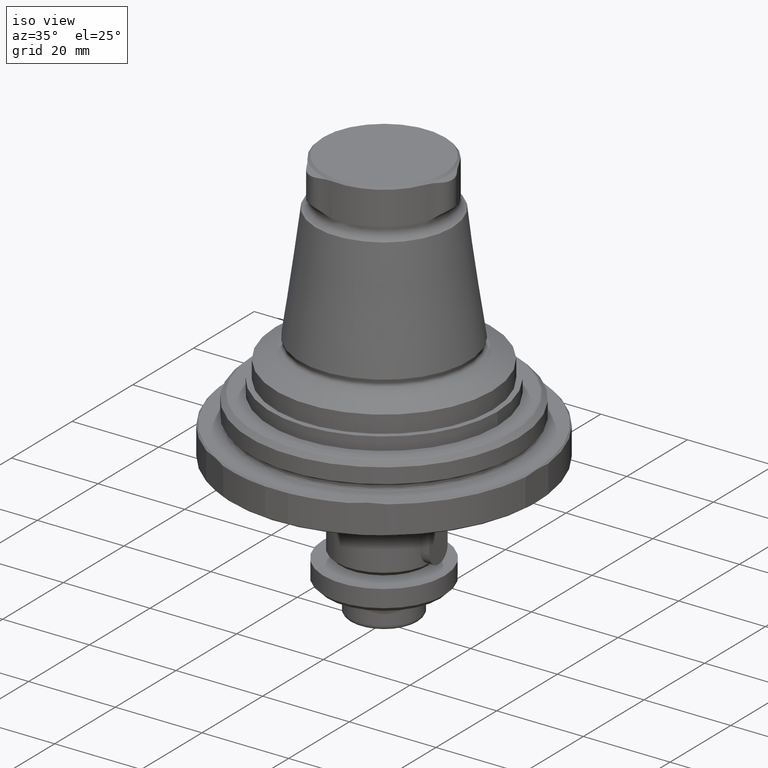
[diagram: clean part render]
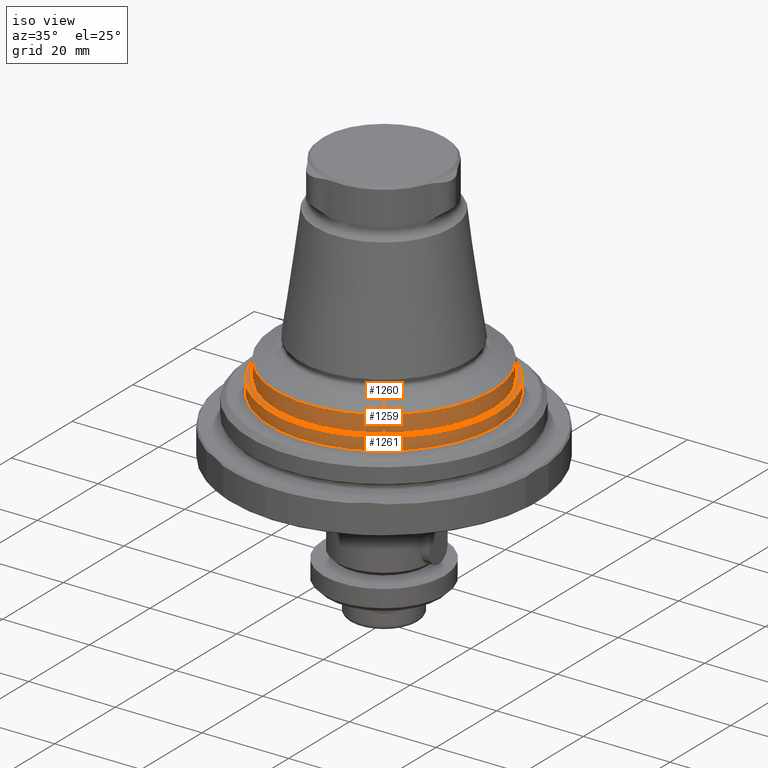
[diagram: same view with one multi-face feature highlighted, each face labeled with its STEP entity id]
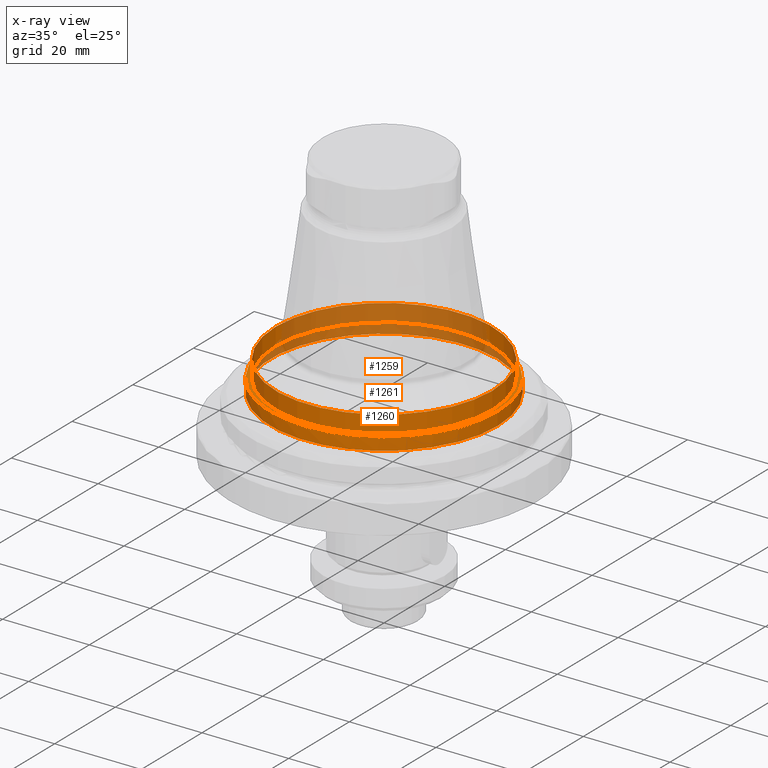
[diagram: x-ray of the same camera — body ghosted, the whole feature saturated]
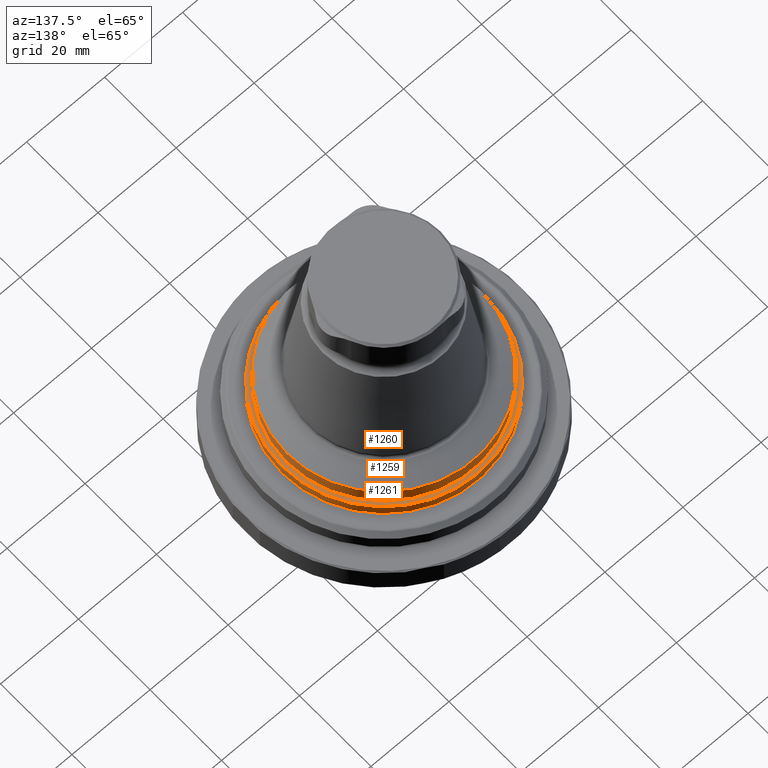
[diagram: same view with one multi-face feature highlighted, each face labeled with its STEP entity id]
A machine part, iso view. The highlighted faces form ONE feature: a stepped (counterbored) hole: 2 coaxial cylindrical walls of radii 25 -> 26.2 mm joined by 1 annular planar shoulder face(s). The faces share edges in the B-rep.
The next image is the same camera in x-ray: the body ghosted and the whole hole feature saturated, so the bore chain is visible through the body.
A second angle (auxiliary view) of the same feature is appended — it is thin or edge-on in the first view.
Their STEP definitions:
[1] entity #1261 (Cylinder):
#403=ORIENTED_EDGE('',*,*,#639,.T.);
#404=ORIENTED_EDGE('',*,*,#640,.T.);
#639=EDGE_CURVE('',#777,#777,#873,.T.);
#640=EDGE_CURVE('',#778,#778,#874,.T.);
#777=VERTEX_POINT('',#2207);
#778=VERTEX_POINT('',#2210);
#873=CIRCLE('',#1414,26.2);
#874=CIRCLE('',#1416,26.2);
#987=EDGE_LOOP('',(#403));
#988=EDGE_LOOP('',(#404));
#1120=FACE_BOUND('',#987,.T.);
#1121=FACE_BOUND('',#988,.T.);
#1193=CYLINDRICAL_SURFACE('',#1415,26.2);
#1261=ADVANCED_FACE('',(#1120,#1121),#1193,.T.);
#1414=AXIS2_PLACEMENT_3D('',#2206,#1718,#1719);
#1415=AXIS2_PLACEMENT_3D('',#2208,#1720,#1721);
#1416=AXIS2_PLACEMENT_3D('',#2209,#1722,#1723);
#1718=DIRECTION('',(-6.33280456939005E-17,6.38359491786664E-17,-1.));
#1719=DIRECTION('',(-1.,6.12303176911189E-17,6.33280456939005E-17));
#1720=DIRECTION('',(6.33280456939005E-17,-2.60563148754756E-18,1.));
#1721=DIRECTION('',(1.,-6.12303176911189E-17,-6.33280456939005E-17));
#1722=DIRECTION('',(6.33280456939005E-17,5.86246862035713E-17,1.));
#1723=DIRECTION('',(1.,-6.12303176911189E-17,-6.33280456939005E-17));
#2206=CARTESIAN_POINT('',(6.29822841266591E-15,1.8883792181606E-31,8.49999999999999));
#2207=CARTESIAN_POINT('',(-26.2,1.60423432350731E-15,8.5));
#2208=CARTESIAN_POINT('',(6.20323634412506E-15,3.90844723132153E-18,7.));
#2209=CARTESIAN_POINT('',(1.69253293504721E-14,7.81689446264166E-18,5.5));
#2210=CARTESIAN_POINT('',(26.2,-1.59641742904467E-15,5.49999999999999));
[2] entity #1259 (Cylinder):
#399=ORIENTED_EDGE('',*,*,#637,.T.);
#400=ORIENTED_EDGE('',*,*,#638,.F.);
#637=EDGE_CURVE('',#775,#775,#871,.T.);
#638=EDGE_CURVE('',#776,#776,#872,.T.);
#775=VERTEX_POINT('',#2201);
#776=VERTEX_POINT('',#2204);
#871=CIRCLE('',#1410,25.);
#872=CIRCLE('',#1412,25.);
#983=EDGE_LOOP('',(#399));
#984=EDGE_LOOP('',(#400));
#1116=FACE_BOUND('',#983,.T.);
#1117=FACE_BOUND('',#984,.T.);
#1192=CYLINDRICAL_SURFACE('',#1411,25.);
#1259=ADVANCED_FACE('',(#1116,#1117),#1192,.T.);
#1410=AXIS2_PLACEMENT_3D('',#2200,#1710,#1711);
#1411=AXIS2_PLACEMENT_3D('',#2202,#1712,#1713);
#1412=AXIS2_PLACEMENT_3D('',#2203,#1714,#1715);
#1710=DIRECTION('',(5.35909541760885E-17,-6.68035657486175E-33,-1.));
#1711=DIRECTION('',(-1.,6.12303176911189E-17,-5.35909541760885E-17));
#1712=DIRECTION('',(5.35909541760885E-17,-6.68035657486175E-33,-1.));
#1713=DIRECTION('',(-1.,6.12303176911189E-17,-5.35909541760885E-17));
#1714=DIRECTION('',(5.35909541760885E-17,-6.68035657486175E-33,-1.));
#1715=DIRECTION('',(-1.,6.12303176911189E-17,-5.35909541760885E-17));
#2200=CARTESIAN_POINT('',(1.14924666568726E-14,-2.83915154431625E-31,12.498889300107));
#2201=CARTESIAN_POINT('',(-25.,1.53075794227797E-15,12.498889300107));
#2202=CARTESIAN_POINT('',(9.2148511043888E-15,0.,54.998889300107));
#2203=CARTESIAN_POINT('',(1.17067709501098E-14,-3.10629160859738E-31,8.49999999999999));
#2204=CARTESIAN_POINT('',(-25.,1.53075794227797E-15,8.49999999999999));
[3] entity #1260 (Plane):
#179=PLANE('',#1413);
#401=ORIENTED_EDGE('',*,*,#639,.F.);
#402=ORIENTED_EDGE('',*,*,#638,.T.);
#638=EDGE_CURVE('',#776,#776,#872,.T.);
#639=EDGE_CURVE('',#777,#777,#873,.T.);
#776=VERTEX_POINT('',#2204);
#777=VERTEX_POINT('',#2207);
#872=CIRCLE('',#1412,25.);
#873=CIRCLE('',#1414,26.2);
#985=EDGE_LOOP('',(#401));
#986=EDGE_LOOP('',(#402));
#1118=FACE_BOUND('',#985,.T.);
#1119=FACE_BOUND('',#986,.T.);
#1260=ADVANCED_FACE('',(#1118,#1119),#179,.T.);
#1412=AXIS2_PLACEMENT_3D('',#2203,#1714,#1715);
#1413=AXIS2_PLACEMENT_3D('',#2205,#1716,#1717);
#1414=AXIS2_PLACEMENT_3D('',#2206,#1718,#1719);
#1714=DIRECTION('',(5.35909541760885E-17,-6.68035657486175E-33,-1.));
#1715=DIRECTION('',(-1.,6.12303176911189E-17,-5.35909541760885E-17));
#1716=DIRECTION('',(6.33280456939005E-17,-6.38359491786664E-17,1.));
#1717=DIRECTION('',(6.12303176911189E-17,1.,6.38359491786664E-17));
#1718=DIRECTION('',(-6.33280456939005E-17,6.38359491786664E-17,-1.));
#1719=DIRECTION('',(-1.,6.12303176911189E-17,6.33280456939005E-17));
#2203=CARTESIAN_POINT('',(1.17067709501098E-14,-3.10629160859738E-31,8.49999999999999));
#2204=CARTESIAN_POINT('',(-25.,1.53075794227797E-15,8.49999999999999));
#2205=CARTESIAN_POINT('',(1.17067709501098E-14,-1.42328855997563E-31,8.49999999999999));
#2206=CARTESIAN_POINT('',(6.29822841266591E-15,1.8883792181606E-31,8.49999999999999));
#2207=CARTESIAN_POINT('',(-26.2,1.60423432350731E-15,8.5));